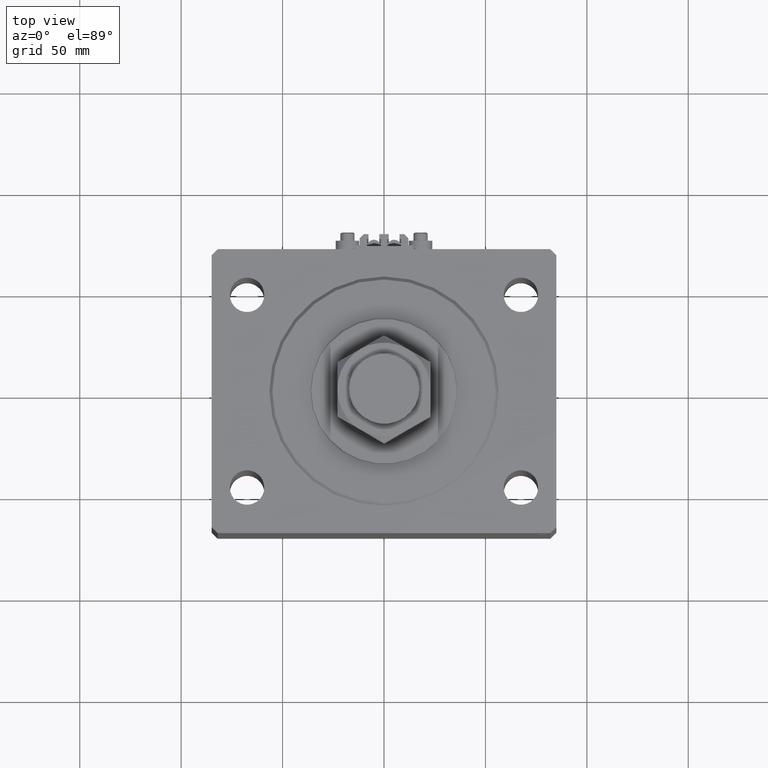
[diagram: clean part render]
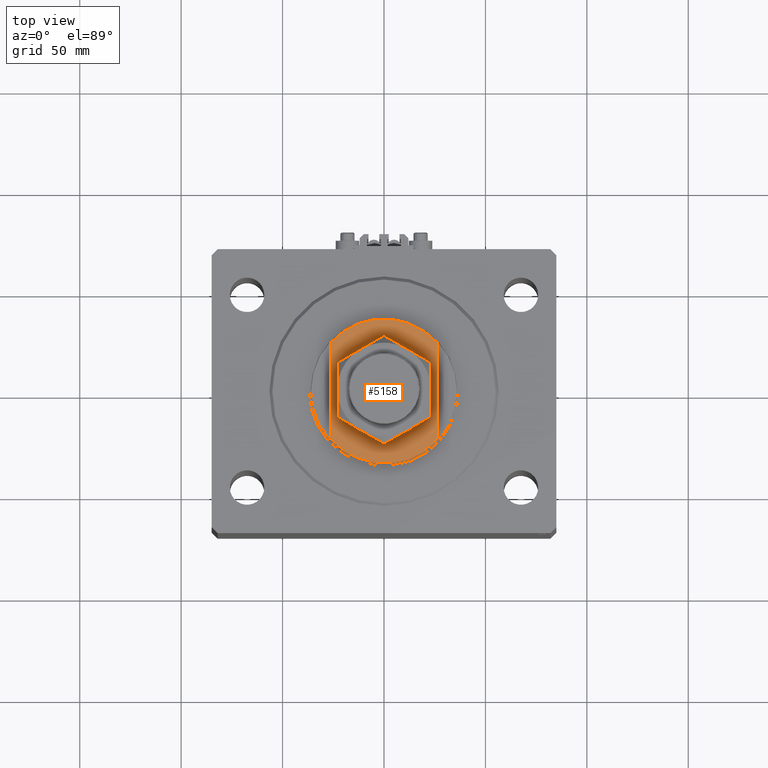
[diagram: same view with one face highlighted and labeled with its STEP entity id]
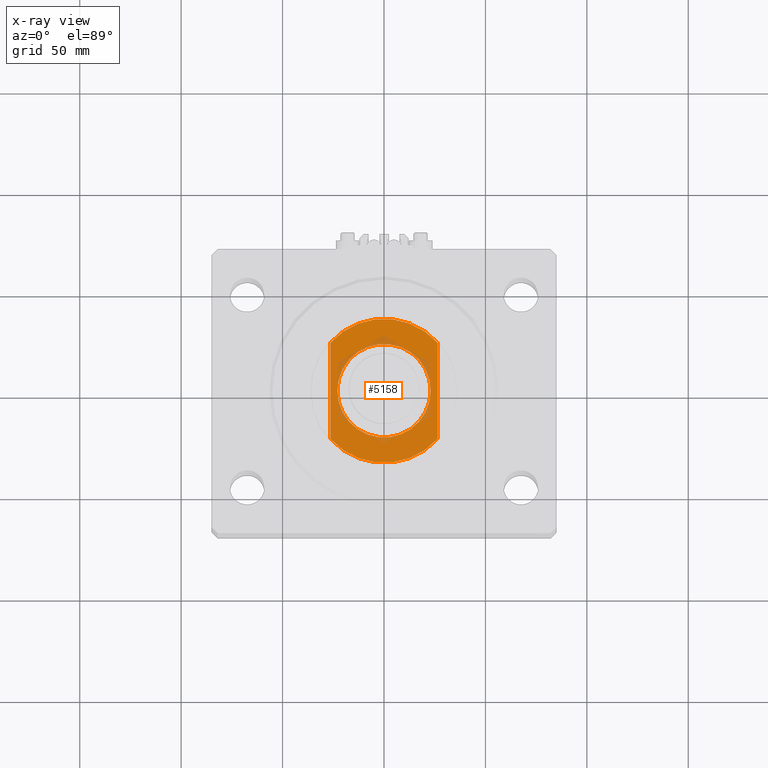
[diagram: x-ray of the same camera — body ghosted, the highlighted face saturated]
A machine part, top view. The second image highlights one B-rep face of the part: STEP entity #5158.
The next image is the same camera in x-ray: the body ghosted, the highlighted face saturated — about 11% of this face is hidden behind the body in this view.
In plain terms, the highlighted planar face has unit normal (0, 0, 1).
Its self-contained STEP definition (entity closure, byte-faithful):
#1305 = CARTESIAN_POINT ( 'NONE',  ( 26.50000000000000000, -23.62202362203541739, -8.000000000000000000 ) ) ;
#2186 = EDGE_CURVE ( 'NONE', #34439, #27846, #13612, .T. ) ;
#3032 = CARTESIAN_POINT ( 'NONE',  ( 26.50000000000000000, -36.36963018783666257, -8.000000000000000000 ) ) ;
#3083 = FACE_BOUND ( 'NONE', #11338, .T. ) ;
#5026 = EDGE_CURVE ( 'NONE', #25846, #32385, #38703, .T. ) ;
#5158 = ADVANCED_FACE ( 'NONE', ( #3083, #29844 ), #45230, .T. ) ;
#6076 = DIRECTION ( 'NONE',  ( -1.000000000000000000, 0.000000000000000000, 0.000000000000000000 ) ) ;
#6601 = VECTOR ( 'NONE', #45694, 1000.000000000000000 ) ;
#6657 = DIRECTION ( 'NONE',  ( -1.000000000000000000, 0.000000000000000000, 0.000000000000000000 ) ) ;
#7700 = CIRCLE ( 'NONE', #18960, 23.00000000000000355 ) ;
#9686 = DIRECTION ( 'NONE',  ( -1.000000000000000000, 0.000000000000000000, 0.000000000000000000 ) ) ;
#9988 = ORIENTED_EDGE ( 'NONE', *, *, #32401, .T. ) ;
#10878 = DIRECTION ( 'NONE',  ( -1.000000000000000000, 0.000000000000000000, -0.000000000000000000 ) ) ;
#10939 = EDGE_CURVE ( 'NONE', #12421, #29049, #26246, .T. ) ;
#10962 = CARTESIAN_POINT ( 'NONE',  ( 23.00000000000000355, 2.816687638038912746E-15, -8.000000000000000000 ) ) ;
#11338 = EDGE_LOOP ( 'NONE', ( #43999, #30120 ) ) ;
#12421 = VERTEX_POINT ( 'NONE', #36490 ) ;
#13612 = CIRCLE ( 'NONE', #16065, 23.00000000000000355 ) ;
#14661 = CARTESIAN_POINT ( 'NONE',  ( 0.000000000000000000, 0.000000000000000000, -8.000000000000000000 ) ) ;
#14913 = ORIENTED_EDGE ( 'NONE', *, *, #10939, .T. ) ;
#15453 = DIRECTION ( 'NONE',  ( -0.000000000000000000, -1.000000000000000000, -0.000000000000000000 ) ) ;
#16065 = AXIS2_PLACEMENT_3D ( 'NONE', #25249, #40658, #6076 ) ;
#17248 = ORIENTED_EDGE ( 'NONE', *, *, #5026, .F. ) ;
#18014 = AXIS2_PLACEMENT_3D ( 'NONE', #34173, #49085, #6657 ) ;
#18960 = AXIS2_PLACEMENT_3D ( 'NONE', #40855, #47935, #25698 ) ;
#24101 = CARTESIAN_POINT ( 'NONE',  ( 0.000000000000000000, 0.000000000000000000, -8.000000000000000000 ) ) ;
#24499 = CARTESIAN_POINT ( 'NONE',  ( -26.50000000000000000, 23.62202362203541739, -8.000000000000000000 ) ) ;
#25084 = VECTOR ( 'NONE', #15453, 1000.000000000000000 ) ;
#25249 = CARTESIAN_POINT ( 'NONE',  ( 0.000000000000000000, 0.000000000000000000, -8.000000000000000000 ) ) ;
#25698 = DIRECTION ( 'NONE',  ( -1.000000000000000000, 0.000000000000000000, 0.000000000000000000 ) ) ;
#25789 = DIRECTION ( 'NONE',  ( 0.000000000000000000, 0.000000000000000000, -1.000000000000000000 ) ) ;
#25846 = VERTEX_POINT ( 'NONE', #24499 ) ;
#26246 = LINE ( 'NONE', #3032, #6601 ) ;
#27053 = ORIENTED_EDGE ( 'NONE', *, *, #46123, .T. ) ;
#27846 = VERTEX_POINT ( 'NONE', #10962 ) ;
#28657 = EDGE_CURVE ( 'NONE', #27846, #34439, #7700, .T. ) ;
#29049 = VERTEX_POINT ( 'NONE', #1305 ) ;
#29844 = FACE_OUTER_BOUND ( 'NONE', #41159, .T. ) ;
#30120 = ORIENTED_EDGE ( 'NONE', *, *, #28657, .T. ) ;
#31481 = CARTESIAN_POINT ( 'NONE',  ( -23.00000000000000355, 0.000000000000000000, -8.000000000000000000 ) ) ;
#31949 = CARTESIAN_POINT ( 'NONE',  ( -26.50000000000000000, -23.62202362203541739, -8.000000000000000000 ) ) ;
#32385 = VERTEX_POINT ( 'NONE', #31949 ) ;
#32401 = EDGE_CURVE ( 'NONE', #25846, #12421, #33556, .T. ) ;
#33556 = CIRCLE ( 'NONE', #40777, 35.49999999999999289 ) ;
#34173 = CARTESIAN_POINT ( 'NONE',  ( 0.000000000000000000, 0.000000000000000000, -8.000000000000000000 ) ) ;
#34435 = CARTESIAN_POINT ( 'NONE',  ( -26.50000000000000000, -36.36963018783666257, -8.000000000000000000 ) ) ;
#34439 = VERTEX_POINT ( 'NONE', #31481 ) ;
#36490 = CARTESIAN_POINT ( 'NONE',  ( 26.50000000000000000, 23.62202362203541739, -8.000000000000000000 ) ) ;
#38703 = LINE ( 'NONE', #34435, #25084 ) ;
#40658 = DIRECTION ( 'NONE',  ( -0.000000000000000000, -0.000000000000000000, 1.000000000000000000 ) ) ;
#40777 = AXIS2_PLACEMENT_3D ( 'NONE', #24101, #48092, #9686 ) ;
#40855 = CARTESIAN_POINT ( 'NONE',  ( 0.000000000000000000, 0.000000000000000000, -8.000000000000000000 ) ) ;
#41159 = EDGE_LOOP ( 'NONE', ( #9988, #14913, #27053, #17248 ) ) ;
#42830 = AXIS2_PLACEMENT_3D ( 'NONE', #14661, #25789, #10878 ) ;
#43999 = ORIENTED_EDGE ( 'NONE', *, *, #2186, .T. ) ;
#44640 = CIRCLE ( 'NONE', #18014, 35.49999999999999289 ) ;
#45230 = PLANE ( 'NONE',  #42830 ) ;
#45694 = DIRECTION ( 'NONE',  ( 0.000000000000000000, -1.000000000000000000, -0.000000000000000000 ) ) ;
#46123 = EDGE_CURVE ( 'NONE', #29049, #32385, #44640, .T. ) ;
#47935 = DIRECTION ( 'NONE',  ( -0.000000000000000000, -0.000000000000000000, 1.000000000000000000 ) ) ;
#48092 = DIRECTION ( 'NONE',  ( 0.000000000000000000, 0.000000000000000000, -1.000000000000000000 ) ) ;
#49085 = DIRECTION ( 'NONE',  ( 0.000000000000000000, 0.000000000000000000, -1.000000000000000000 ) ) ;